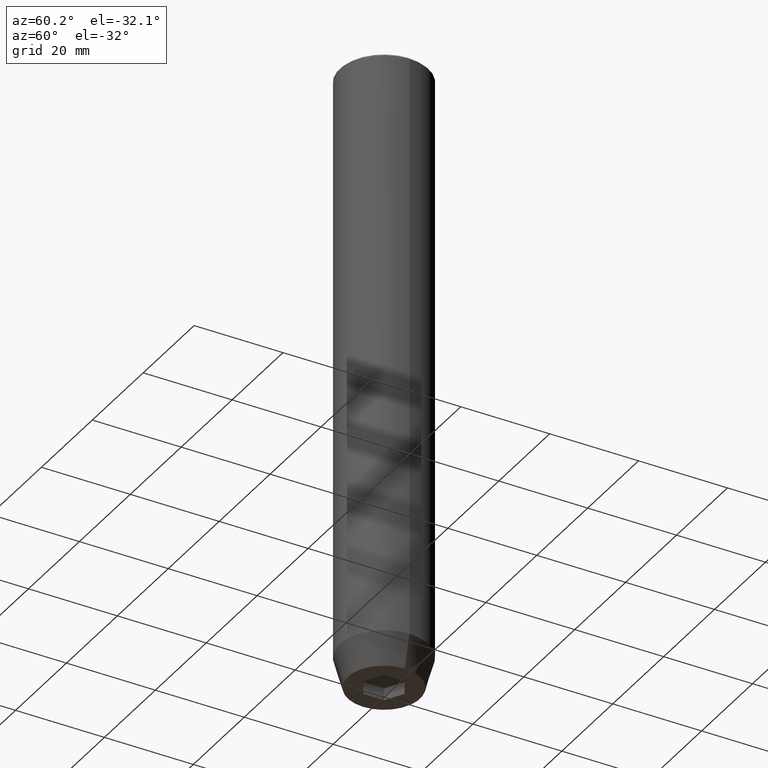
[diagram: clean part render]
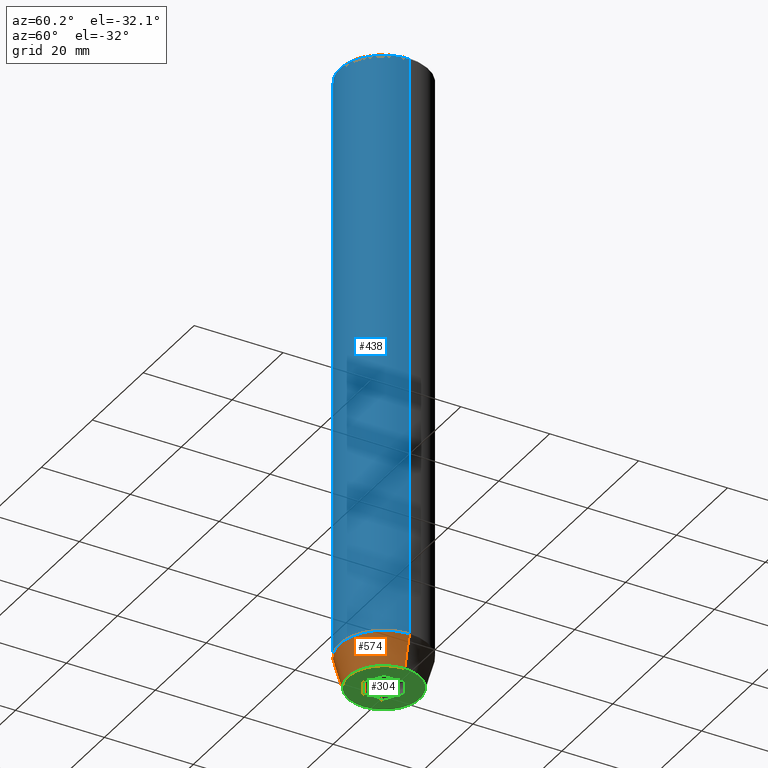
[diagram: same view with three faces highlighted in distinct colors, each labeled with its STEP entity id]
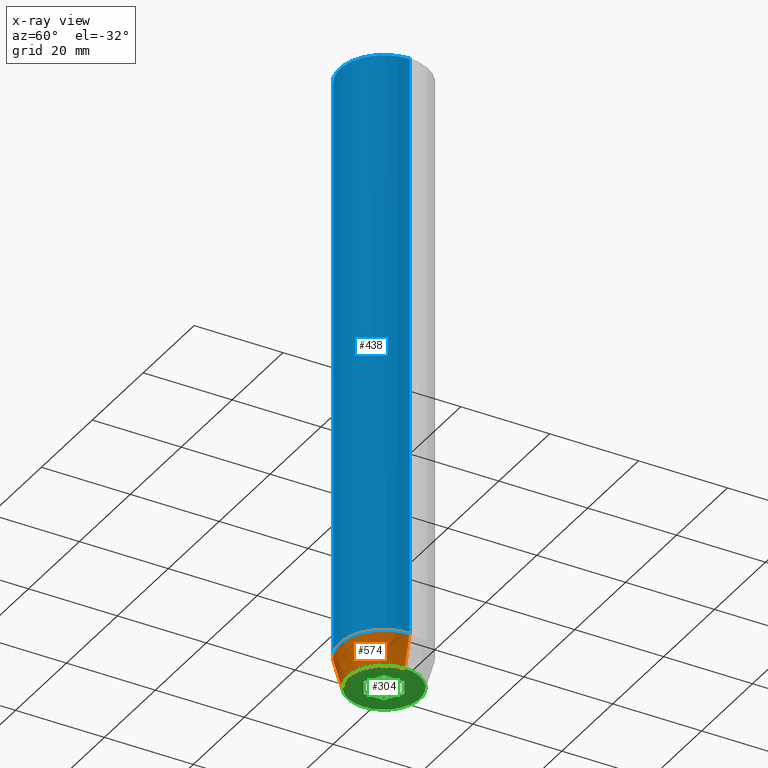
[diagram: x-ray of the same camera — body ghosted, the three highlighted faces saturated]
A machine part, auxiliary view with three faces highlighted in distinct colors.
The next image is the same camera in x-ray (body ghosted, the three faces saturated) — at least one of them is partly hidden behind the body in this view.
Their STEP definitions:

[orange] entity #574 — the highlighted conical surface has half-angle 15 deg.
#1 = LINE ( 'NONE', #5, #105 ) ;
#5 = CARTESIAN_POINT ( 'NONE',  ( -10.00000000000000000, 1.224646799147353256E-15, -133.0000000000000000 ) ) ;
#14 = VERTEX_POINT ( 'NONE', #313 ) ;
#15 = DIRECTION ( 'NONE',  ( 1.000000000000000000, 0.000000000000000000, 0.000000000000000000 ) ) ;
#17 = ORIENTED_EDGE ( 'NONE', *, *, #22, .T. ) ;
#22 = EDGE_CURVE ( 'NONE', #14, #497, #404, .T. ) ;
#25 = CARTESIAN_POINT ( 'NONE',  ( 0.000000000000000000, 0.000000000000000000, -133.0000000000000000 ) ) ;
#37 = CARTESIAN_POINT ( 'NONE',  ( 10.00000000000000000, 0.000000000000000000, -133.0000000000000000 ) ) ;
#49 = DIRECTION ( 'NONE',  ( -0.000000000000000000, -0.000000000000000000, 1.000000000000000000 ) ) ;
#62 = ORIENTED_EDGE ( 'NONE', *, *, #83, .T. ) ;
#74 = CARTESIAN_POINT ( 'NONE',  ( 0.000000000000000000, 0.000000000000000000, -140.0000000000000000 ) ) ;
#83 = EDGE_CURVE ( 'NONE', #578, #14, #195, .T. ) ;
#105 = VECTOR ( 'NONE', #150, 1000.000000000000114 ) ;
#130 = EDGE_CURVE ( 'NONE', #243, #497, #482, .T. ) ;
#139 = AXIS2_PLACEMENT_3D ( 'NONE', #151, #49, #385 ) ;
#150 = DIRECTION ( 'NONE',  ( -0.2588190451025210725, 3.169619151431769255E-17, 0.9659258262890680902 ) ) ;
#151 = CARTESIAN_POINT ( 'NONE',  ( 0.000000000000000000, 0.000000000000000000, -133.0000000000000000 ) ) ;
#159 = EDGE_CURVE ( 'NONE', #578, #243, #1, .T. ) ;
#165 = EDGE_LOOP ( 'NONE', ( #352, #62, #17, #198 ) ) ;
#195 = CIRCLE ( 'NONE', #575, 8.124355652982137244 ) ;
#196 = FACE_OUTER_BOUND ( 'NONE', #165, .T. ) ;
#198 = ORIENTED_EDGE ( 'NONE', *, *, #130, .F. ) ;
#243 = VERTEX_POINT ( 'NONE', #273 ) ;
#273 = CARTESIAN_POINT ( 'NONE',  ( -10.00000000000000000, 1.224646799147353256E-15, -133.0000000000000000 ) ) ;
#290 = DIRECTION ( 'NONE',  ( -0.000000000000000000, -0.000000000000000000, 1.000000000000000000 ) ) ;
#294 = DIRECTION ( 'NONE',  ( -0.000000000000000000, -0.000000000000000000, 1.000000000000000000 ) ) ;
#313 = CARTESIAN_POINT ( 'NONE',  ( 8.124355652982137244, 0.000000000000000000, -140.0000000000000000 ) ) ;
#320 = CONICAL_SURFACE ( 'NONE', #139, 10.00000000000000000, 0.2617993877991497964 ) ;
#352 = ORIENTED_EDGE ( 'NONE', *, *, #159, .F. ) ;
#358 = VECTOR ( 'NONE', #364, 1000.000000000000114 ) ;
#364 = DIRECTION ( 'NONE',  ( 0.2588190451025210725, 0.000000000000000000, 0.9659258262890680902 ) ) ;
#385 = DIRECTION ( 'NONE',  ( 1.000000000000000000, 0.000000000000000000, 0.000000000000000000 ) ) ;
#404 = LINE ( 'NONE', #37, #358 ) ;
#482 = CIRCLE ( 'NONE', #521, 10.00000000000000000 ) ;
#497 = VERTEX_POINT ( 'NONE', #584 ) ;
#521 = AXIS2_PLACEMENT_3D ( 'NONE', #25, #290, #560 ) ;
#542 = CARTESIAN_POINT ( 'NONE',  ( -8.124355652982137244, 1.109796706851640556E-15, -140.0000000000000000 ) ) ;
#560 = DIRECTION ( 'NONE',  ( 1.000000000000000000, 0.000000000000000000, 0.000000000000000000 ) ) ;
#574 = ADVANCED_FACE ( 'NONE', ( #196 ), #320, .T. ) ;
#575 = AXIS2_PLACEMENT_3D ( 'NONE', #74, #294, #15 ) ;
#578 = VERTEX_POINT ( 'NONE', #542 ) ;
#584 = CARTESIAN_POINT ( 'NONE',  ( 10.00000000000000000, 0.000000000000000000, -133.0000000000000000 ) ) ;

[blue] entity #438 — the highlighted cylindrical surface (partial cylindrical patch) has radius 10 mm, axis along (-0, -0, 1).
#7 = VERTEX_POINT ( 'NONE', #561 ) ;
#25 = CARTESIAN_POINT ( 'NONE',  ( 0.000000000000000000, 0.000000000000000000, -133.0000000000000000 ) ) ;
#47 = CARTESIAN_POINT ( 'NONE',  ( 0.000000000000000000, 0.000000000000000000, 0.000000000000000000 ) ) ;
#55 = ORIENTED_EDGE ( 'NONE', *, *, #424, .T. ) ;
#100 = DIRECTION ( 'NONE',  ( 1.000000000000000000, 0.000000000000000000, 0.000000000000000000 ) ) ;
#130 = EDGE_CURVE ( 'NONE', #243, #497, #482, .T. ) ;
#133 = VERTEX_POINT ( 'NONE', #485 ) ;
#140 = DIRECTION ( 'NONE',  ( 1.000000000000000000, 0.000000000000000000, 0.000000000000000000 ) ) ;
#170 = AXIS2_PLACEMENT_3D ( 'NONE', #425, #464, #100 ) ;
#229 = LINE ( 'NONE', #531, #483 ) ;
#243 = VERTEX_POINT ( 'NONE', #273 ) ;
#256 = ORIENTED_EDGE ( 'NONE', *, *, #571, .T. ) ;
#258 = CIRCLE ( 'NONE', #170, 10.00000000000000000 ) ;
#273 = CARTESIAN_POINT ( 'NONE',  ( -10.00000000000000000, 1.224646799147353256E-15, -133.0000000000000000 ) ) ;
#290 = DIRECTION ( 'NONE',  ( -0.000000000000000000, -0.000000000000000000, 1.000000000000000000 ) ) ;
#299 = ORIENTED_EDGE ( 'NONE', *, *, #130, .T. ) ;
#312 = AXIS2_PLACEMENT_3D ( 'NONE', #47, #507, #140 ) ;
#362 = DIRECTION ( 'NONE',  ( -0.000000000000000000, -0.000000000000000000, 1.000000000000000000 ) ) ;
#366 = ORIENTED_EDGE ( 'NONE', *, *, #458, .F. ) ;
#405 = LINE ( 'NONE', #409, #492 ) ;
#409 = CARTESIAN_POINT ( 'NONE',  ( 10.00000000000000000, 0.000000000000000000, 0.000000000000000000 ) ) ;
#424 = EDGE_CURVE ( 'NONE', #497, #133, #405, .T. ) ;
#425 = CARTESIAN_POINT ( 'NONE',  ( 0.000000000000000000, 0.000000000000000000, -0.4999999999999987232 ) ) ;
#438 = ADVANCED_FACE ( 'NONE', ( #579 ), #455, .T. ) ;
#455 = CYLINDRICAL_SURFACE ( 'NONE', #312, 10.00000000000000000 ) ;
#458 = EDGE_CURVE ( 'NONE', #243, #7, #229, .T. ) ;
#464 = DIRECTION ( 'NONE',  ( 0.000000000000000000, 0.000000000000000000, -1.000000000000000000 ) ) ;
#476 = EDGE_LOOP ( 'NONE', ( #366, #299, #55, #256 ) ) ;
#482 = CIRCLE ( 'NONE', #521, 10.00000000000000000 ) ;
#483 = VECTOR ( 'NONE', #586, 1000.000000000000000 ) ;
#485 = CARTESIAN_POINT ( 'NONE',  ( 10.00000000000000000, 0.000000000000000000, -0.4999999999999987232 ) ) ;
#492 = VECTOR ( 'NONE', #362, 1000.000000000000000 ) ;
#497 = VERTEX_POINT ( 'NONE', #584 ) ;
#507 = DIRECTION ( 'NONE',  ( -0.000000000000000000, -0.000000000000000000, 1.000000000000000000 ) ) ;
#521 = AXIS2_PLACEMENT_3D ( 'NONE', #25, #290, #560 ) ;
#531 = CARTESIAN_POINT ( 'NONE',  ( -10.00000000000000000, 1.224646799147353256E-15, 0.000000000000000000 ) ) ;
#560 = DIRECTION ( 'NONE',  ( 1.000000000000000000, 0.000000000000000000, 0.000000000000000000 ) ) ;
#561 = CARTESIAN_POINT ( 'NONE',  ( -10.00000000000000000, 1.224646799147353256E-15, -0.4999999999999987232 ) ) ;
#571 = EDGE_CURVE ( 'NONE', #133, #7, #258, .T. ) ;
#579 = FACE_OUTER_BOUND ( 'NONE', #476, .T. ) ;
#584 = CARTESIAN_POINT ( 'NONE',  ( 10.00000000000000000, 0.000000000000000000, -133.0000000000000000 ) ) ;
#586 = DIRECTION ( 'NONE',  ( -0.000000000000000000, -0.000000000000000000, 1.000000000000000000 ) ) ;

[green] entity #304 — the highlighted planar face has unit normal (0, 0, -1).
#8 = EDGE_LOOP ( 'NONE', ( #380, #12 ) ) ;
#12 = ORIENTED_EDGE ( 'NONE', *, *, #83, .F. ) ;
#14 = VERTEX_POINT ( 'NONE', #313 ) ;
#15 = DIRECTION ( 'NONE',  ( 1.000000000000000000, 0.000000000000000000, 0.000000000000000000 ) ) ;
#18 = VECTOR ( 'NONE', #259, 1000.000000000000000 ) ;
#21 = ORIENTED_EDGE ( 'NONE', *, *, #541, .F. ) ;
#26 = DIRECTION ( 'NONE',  ( -1.000000000000000000, 0.000000000000000000, -0.000000000000000000 ) ) ;
#32 = VERTEX_POINT ( 'NONE', #174 ) ;
#36 = DIRECTION ( 'NONE',  ( 1.000000000000000000, 0.000000000000000000, 0.000000000000000000 ) ) ;
#43 = EDGE_CURVE ( 'NONE', #335, #551, #223, .T. ) ;
#54 = DIRECTION ( 'NONE',  ( 0.8660254037844387076, 0.5000000000000001110, 0.000000000000000000 ) ) ;
#73 = DIRECTION ( 'NONE',  ( 0.000000000000000000, 0.000000000000000000, -1.000000000000000000 ) ) ;
#74 = CARTESIAN_POINT ( 'NONE',  ( 0.000000000000000000, 0.000000000000000000, -140.0000000000000000 ) ) ;
#79 = FACE_OUTER_BOUND ( 'NONE', #8, .T. ) ;
#83 = EDGE_CURVE ( 'NONE', #578, #14, #195, .T. ) ;
#87 = VERTEX_POINT ( 'NONE', #209 ) ;
#95 = VECTOR ( 'NONE', #54, 999.9999999999998863 ) ;
#101 = LINE ( 'NONE', #465, #95 ) ;
#117 = ORIENTED_EDGE ( 'NONE', *, *, #275, .F. ) ;
#119 = AXIS2_PLACEMENT_3D ( 'NONE', #262, #73, #26 ) ;
#126 = CARTESIAN_POINT ( 'NONE',  ( -2.000000000000000888, -3.464101615137754386, -140.0000000000000000 ) ) ;
#131 = CARTESIAN_POINT ( 'NONE',  ( 0.000000000000000000, 0.000000000000000000, -140.0000000000000000 ) ) ;
#137 = DIRECTION ( 'NONE',  ( 0.000000000000000000, 1.000000000000000000, 0.000000000000000000 ) ) ;
#149 = CIRCLE ( 'NONE', #508, 8.124355652982137244 ) ;
#167 = LINE ( 'NONE', #441, #18 ) ;
#174 = CARTESIAN_POINT ( 'NONE',  ( 4.000000000000000000, 2.309401076758503368, -140.0000000000000000 ) ) ;
#183 = DIRECTION ( 'NONE',  ( -0.8660254037844384856, 0.5000000000000002220, 0.000000000000000000 ) ) ;
#185 = LINE ( 'NONE', #323, #384 ) ;
#186 = ORIENTED_EDGE ( 'NONE', *, *, #221, .F. ) ;
#195 = CIRCLE ( 'NONE', #575, 8.124355652982137244 ) ;
#209 = CARTESIAN_POINT ( 'NONE',  ( -4.000000000000000000, 2.309401076758503368, -140.0000000000000000 ) ) ;
#214 = VECTOR ( 'NONE', #265, 1000.000000000000114 ) ;
#221 = EDGE_CURVE ( 'NONE', #400, #335, #231, .T. ) ;
#223 = LINE ( 'NONE', #126, #328 ) ;
#231 = LINE ( 'NONE', #314, #214 ) ;
#259 = DIRECTION ( 'NONE',  ( 0.000000000000000000, -1.000000000000000000, 0.000000000000000000 ) ) ;
#262 = CARTESIAN_POINT ( 'NONE',  ( 0.000000000000000000, 8.124355652982137244, -140.0000000000000000 ) ) ;
#265 = DIRECTION ( 'NONE',  ( -0.8660254037844384856, -0.5000000000000002220, 0.000000000000000000 ) ) ;
#275 = EDGE_CURVE ( 'NONE', #87, #572, #101, .T. ) ;
#289 = CARTESIAN_POINT ( 'NONE',  ( 4.000000000000000000, -2.309401076758502480, -140.0000000000000000 ) ) ;
#294 = DIRECTION ( 'NONE',  ( -0.000000000000000000, -0.000000000000000000, 1.000000000000000000 ) ) ;
#304 = ADVANCED_FACE ( 'NONE', ( #310, #79 ), #439, .T. ) ;
#310 = FACE_BOUND ( 'NONE', #343, .T. ) ;
#313 = CARTESIAN_POINT ( 'NONE',  ( 8.124355652982137244, 0.000000000000000000, -140.0000000000000000 ) ) ;
#314 = CARTESIAN_POINT ( 'NONE',  ( 2.000000000000000888, -3.464101615137754386, -140.0000000000000000 ) ) ;
#323 = CARTESIAN_POINT ( 'NONE',  ( -4.000000000000000000, 0.000000000000000000, -140.0000000000000000 ) ) ;
#328 = VECTOR ( 'NONE', #183, 1000.000000000000114 ) ;
#335 = VERTEX_POINT ( 'NONE', #580 ) ;
#341 = EDGE_CURVE ( 'NONE', #551, #87, #185, .T. ) ;
#343 = EDGE_LOOP ( 'NONE', ( #117, #500, #377, #186, #417, #21 ) ) ;
#346 = VECTOR ( 'NONE', #537, 1000.000000000000000 ) ;
#365 = LINE ( 'NONE', #370, #346 ) ;
#370 = CARTESIAN_POINT ( 'NONE',  ( 2.000000000000000444, 3.464101615137754386, -140.0000000000000000 ) ) ;
#377 = ORIENTED_EDGE ( 'NONE', *, *, #43, .F. ) ;
#378 = EDGE_CURVE ( 'NONE', #32, #400, #167, .T. ) ;
#379 = CARTESIAN_POINT ( 'NONE',  ( 2.168404344971008868E-16, 4.618802153517006737, -140.0000000000000000 ) ) ;
#380 = ORIENTED_EDGE ( 'NONE', *, *, #452, .F. ) ;
#384 = VECTOR ( 'NONE', #137, 1000.000000000000000 ) ;
#400 = VERTEX_POINT ( 'NONE', #289 ) ;
#417 = ORIENTED_EDGE ( 'NONE', *, *, #378, .F. ) ;
#439 = PLANE ( 'NONE',  #119 ) ;
#441 = CARTESIAN_POINT ( 'NONE',  ( 4.000000000000000000, 0.000000000000000000, -140.0000000000000000 ) ) ;
#449 = DIRECTION ( 'NONE',  ( -0.000000000000000000, -0.000000000000000000, 1.000000000000000000 ) ) ;
#452 = EDGE_CURVE ( 'NONE', #14, #578, #149, .T. ) ;
#465 = CARTESIAN_POINT ( 'NONE',  ( -2.000000000000000000, 3.464101615137754830, -140.0000000000000000 ) ) ;
#469 = CARTESIAN_POINT ( 'NONE',  ( -4.000000000000000000, -2.309401076758503368, -140.0000000000000000 ) ) ;
#500 = ORIENTED_EDGE ( 'NONE', *, *, #341, .F. ) ;
#508 = AXIS2_PLACEMENT_3D ( 'NONE', #131, #449, #36 ) ;
#537 = DIRECTION ( 'NONE',  ( 0.8660254037844385966, -0.5000000000000001110, 0.000000000000000000 ) ) ;
#541 = EDGE_CURVE ( 'NONE', #572, #32, #365, .T. ) ;
#542 = CARTESIAN_POINT ( 'NONE',  ( -8.124355652982137244, 1.109796706851640556E-15, -140.0000000000000000 ) ) ;
#551 = VERTEX_POINT ( 'NONE', #469 ) ;
#572 = VERTEX_POINT ( 'NONE', #379 ) ;
#575 = AXIS2_PLACEMENT_3D ( 'NONE', #74, #294, #15 ) ;
#578 = VERTEX_POINT ( 'NONE', #542 ) ;
#580 = CARTESIAN_POINT ( 'NONE',  ( 4.336808689942017736E-16, -4.618802153517006737, -140.0000000000000000 ) ) ;